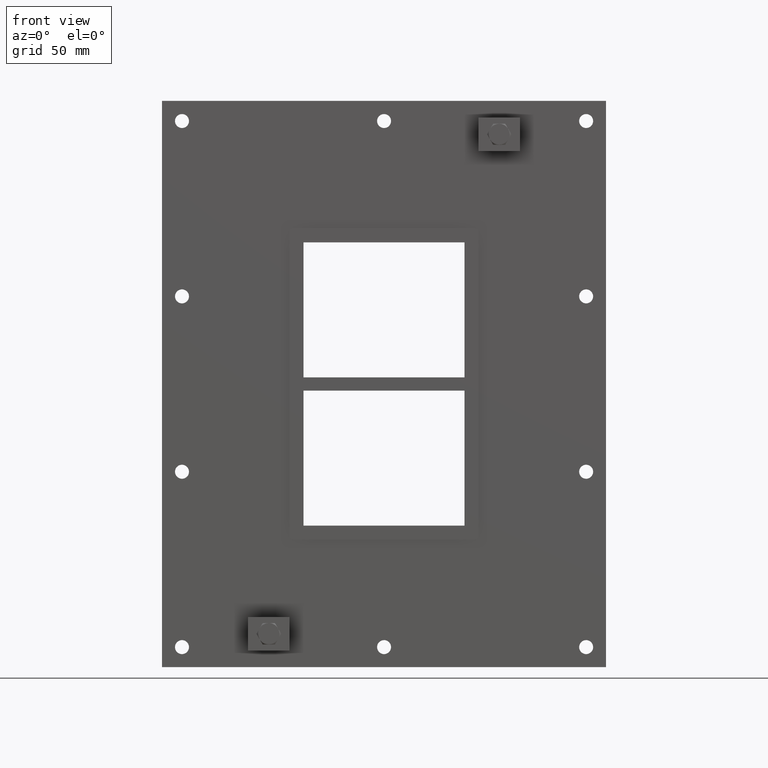
[diagram: clean part render]
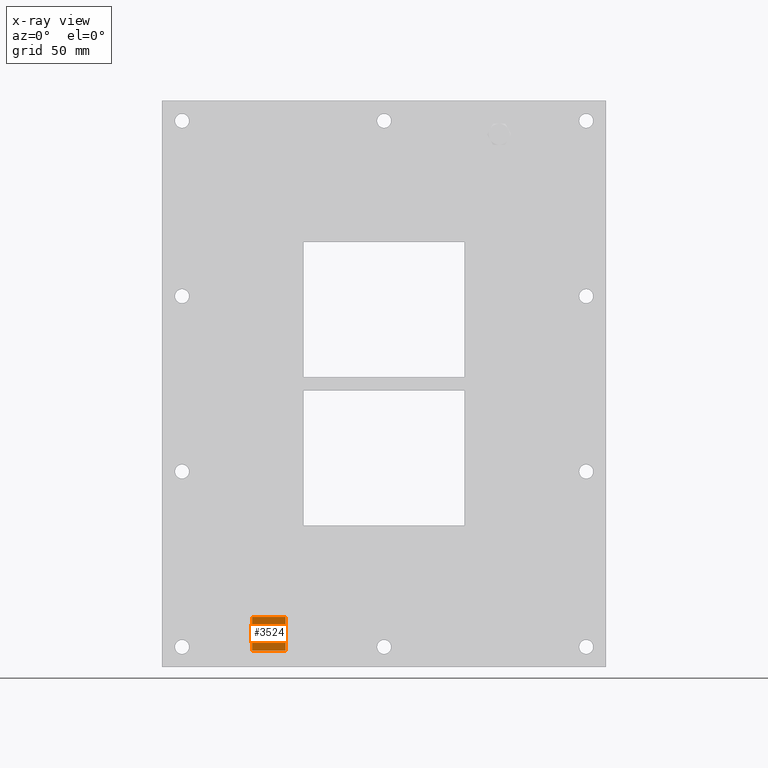
[diagram: x-ray — body ghosted, one internal face saturated and labeled with its STEP entity id]
A machine part, front view, then the same camera in x-ray: the body is ghosted and one INTERNAL B-rep face — a face not visible from any outside direction — is saturated and labeled: STEP entity #3524.
In plain terms, the highlighted planar face has unit normal (0, 1, 0).
Its self-contained STEP definition (entity closure, byte-faithful):
#3379=CARTESIAN_POINT('',(-98.750000000000142,0.0,-199.50000000000003));
#3380=VERTEX_POINT('',#3379);
#3381=CARTESIAN_POINT('',(-98.750000000000142,0.0,-174.50000000000003));
#3382=VERTEX_POINT('',#3381);
#3383=CARTESIAN_POINT('',(-98.750000000000142,0.0,-199.50000000000003));
#3384=DIRECTION('',(0.0,0.0,1.0));
#3385=VECTOR('',#3384,25.0);
#3386=LINE('',#3383,#3385);
#3387=EDGE_CURVE('',#3380,#3382,#3386,.T.);
#3419=CARTESIAN_POINT('',(-73.75,0.0,-174.50000000000003));
#3420=VERTEX_POINT('',#3419);
#3421=CARTESIAN_POINT('',(-98.750000000000142,0.0,-174.50000000000003));
#3422=DIRECTION('',(1.0,0.0,0.0));
#3423=VECTOR('',#3422,25.000000000000142);
#3424=LINE('',#3421,#3423);
#3425=EDGE_CURVE('',#3382,#3420,#3424,.T.);
#3450=CARTESIAN_POINT('',(-73.75,0.0,-199.50000000000003));
#3451=VERTEX_POINT('',#3450);
#3452=CARTESIAN_POINT('',(-73.75,0.0,-174.50000000000003));
#3453=DIRECTION('',(0.0,0.0,-1.0));
#3454=VECTOR('',#3453,25.0);
#3455=LINE('',#3452,#3454);
#3456=EDGE_CURVE('',#3420,#3451,#3455,.T.);
#3481=CARTESIAN_POINT('',(-73.75,0.0,-199.50000000000003));
#3482=DIRECTION('',(-1.0,0.0,0.0));
#3483=VECTOR('',#3482,25.000000000000142);
#3484=LINE('',#3481,#3483);
#3485=EDGE_CURVE('',#3451,#3380,#3484,.T.);
#3513=CARTESIAN_POINT('',(-86.250000000000071,0.0,-187.0));
#3514=DIRECTION('',(0.0,1.0,0.0));
#3515=DIRECTION('',(0.0,0.0,1.0));
#3516=AXIS2_PLACEMENT_3D('',#3513,#3514,#3515);
#3517=PLANE('',#3516);
#3518=ORIENTED_EDGE('',*,*,#3485,.T.);
#3519=ORIENTED_EDGE('',*,*,#3387,.T.);
#3520=ORIENTED_EDGE('',*,*,#3425,.T.);
#3521=ORIENTED_EDGE('',*,*,#3456,.T.);
#3522=EDGE_LOOP('',(#3518,#3519,#3520,#3521));
#3523=FACE_OUTER_BOUND('',#3522,.T.);
#3524=ADVANCED_FACE('',(#3523),#3517,.T.);